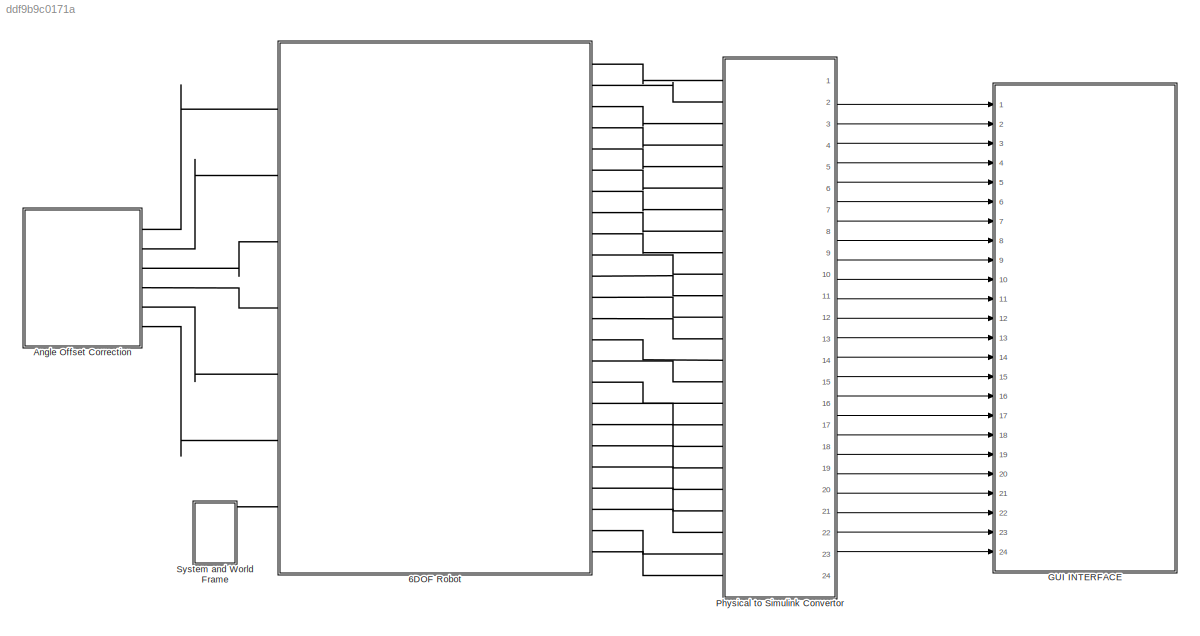
MODEL slx_ddf9b9c0171a
KIND model
CONFIG AbsTol = auto
CONFIG EnableMultiTasking = off
CONFIG FixedStep = auto
CONFIG MaxStep = auto
CONFIG MinStep = auto
CONFIG RelTol = 1e-3
CONFIG SampleTimeConstraint = Unconstrained
CONFIG SolverName = VariableStepAuto
CONFIG StartTime = 0.0
CONFIG StopTime = Inf
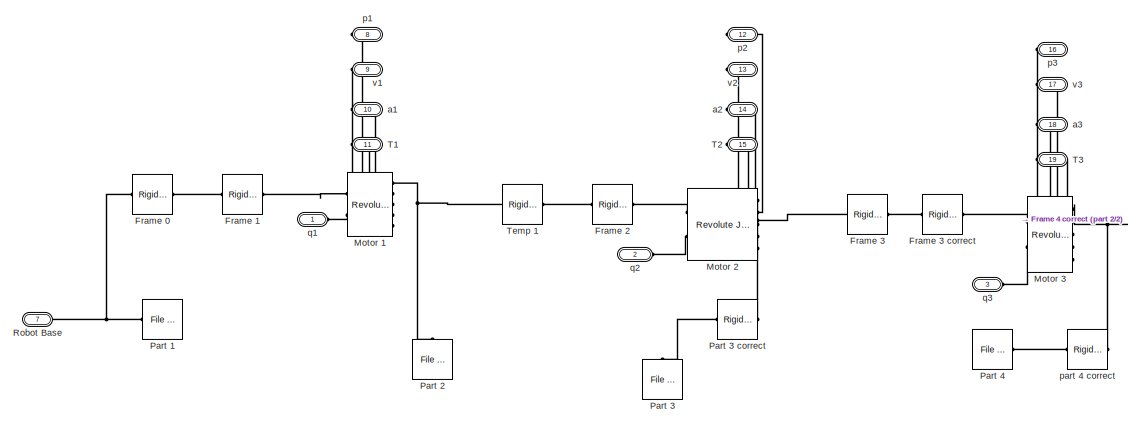
[diagram: 6DOF Robot - part 1/2, left side, full height]
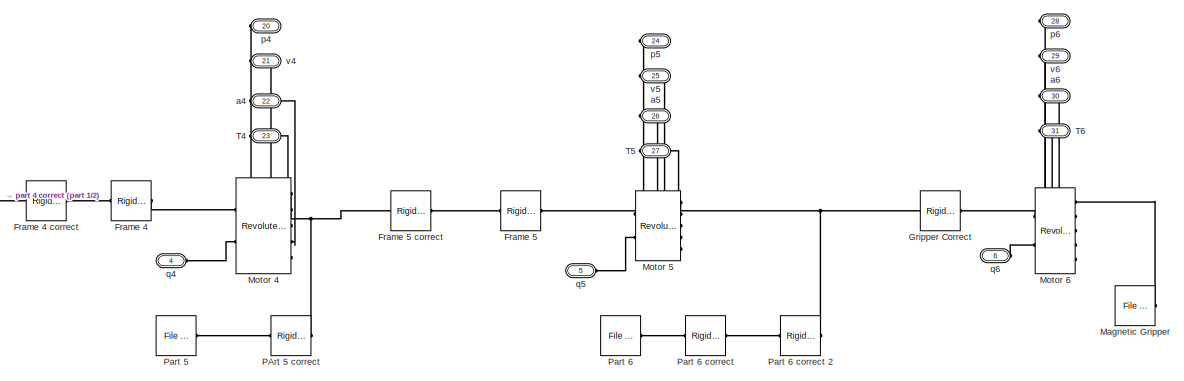
[diagram: 6DOF Robot - part 2/2, right side, full height]
BLOCK [SubSystem] 6DOF Robot
  Ports = [0, 0, 0, 0, 0, 7, 24]
  RequestExecContextInheritance = off
BLOCK [Reference] 6DOF Robot/Frame 0  REF=sm_lib/Frames and
Transforms/Rigid
Transform
  Ports = [0, 0, 0, 0, 0, 1, 1]
  SourceBlock = sm_lib/Frames and\nTransforms/Rigid\nTransform
  SourceProductBaseCode = MS
  SourceType = Rigid\nTransform
BLOCK [Reference] 6DOF Robot/Frame 1  REF=sm_lib/Frames and
Transforms/Rigid
Transform
  Ports = [0, 0, 0, 0, 0, 1, 1]
  SourceBlock = sm_lib/Frames and\nTransforms/Rigid\nTransform
  SourceProductBaseCode = MS
  SourceType = Rigid\nTransform
BLOCK [Reference] 6DOF Robot/Frame 2  REF=sm_lib/Frames and
Transforms/Rigid
Transform
  Ports = [0, 0, 0, 0, 0, 1, 1]
  SourceBlock = sm_lib/Frames and\nTransforms/Rigid\nTransform
  SourceProductBaseCode = MS
  SourceType = Rigid\nTransform
BLOCK [Reference] 6DOF Robot/Frame 3  REF=sm_lib/Frames and
Transforms/Rigid
Transform
  Ports = [0, 0, 0, 0, 0, 1, 1]
  SourceBlock = sm_lib/Frames and\nTransforms/Rigid\nTransform
  SourceProductBaseCode = MS
  SourceType = Rigid\nTransform
BLOCK [Reference] 6DOF Robot/Frame 3 correct  REF=sm_lib/Frames and
Transforms/Rigid
Transform
  Ports = [0, 0, 0, 0, 0, 1, 1]
  SourceBlock = sm_lib/Frames and\nTransforms/Rigid\nTransform
  SourceProductBaseCode = MS
  SourceType = Rigid\nTransform
BLOCK [Reference] 6DOF Robot/Frame 4  REF=sm_lib/Frames and
Transforms/Rigid
Transform
  Ports = [0, 0, 0, 0, 0, 1, 1]
  SourceBlock = sm_lib/Frames and\nTransforms/Rigid\nTransform
  SourceProductBaseCode = MS
  SourceType = Rigid\nTransform
BLOCK [Reference] 6DOF Robot/Frame 4 correct  REF=sm_lib/Frames and
Transforms/Rigid
Transform
  Ports = [0, 0, 0, 0, 0, 1, 1]
  SourceBlock = sm_lib/Frames and\nTransforms/Rigid\nTransform
  SourceProductBaseCode = MS
  SourceType = Rigid\nTransform
BLOCK [Reference] 6DOF Robot/Frame 5   REF=sm_lib/Frames and
Transforms/Rigid
Transform
  Ports = [0, 0, 0, 0, 0, 1, 1]
  SourceBlock = sm_lib/Frames and\nTransforms/Rigid\nTransform
  SourceProductBaseCode = MS
  SourceType = Rigid\nTransform
BLOCK [Reference] 6DOF Robot/Frame 5 correct  REF=sm_lib/Frames and
Transforms/Rigid
Transform
  Ports = [0, 0, 0, 0, 0, 1, 1]
  SourceBlock = sm_lib/Frames and\nTransforms/Rigid\nTransform
  SourceProductBaseCode = MS
  SourceType = Rigid\nTransform
BLOCK [Reference] 6DOF Robot/Gripper Correct  REF=sm_lib/Frames and
Transforms/Rigid
Transform
  Ports = [0, 0, 0, 0, 0, 1, 1]
  SourceBlock = sm_lib/Frames and\nTransforms/Rigid\nTransform
  SourceProductBaseCode = MS
  SourceType = Rigid\nTransform
BLOCK [Reference] 6DOF Robot/Magnetic Gripper  REF=sm_lib/Body Elements/File Solid
  Ports = [0, 0, 0, 0, 0, 0, 1]
  SourceBlock = sm_lib/Body Elements/File Solid
  SourceProductBaseCode = MS
  SourceType = File Solid
BLOCK [Reference] 6DOF Robot/Motor 1  REF=sm_lib/Joints/Revolute Joint
  Ports = [0, 0, 0, 0, 0, 2, 5]
  SourceBlock = sm_lib/Joints/Revolute Joint
  SourceProductBaseCode = MS
  SourceType = Revolute Joint
BLOCK [Reference] 6DOF Robot/Motor 2  REF=sm_lib/Joints/Revolute Joint
  Ports = [0, 0, 0, 0, 0, 2, 5]
  SourceBlock = sm_lib/Joints/Revolute Joint
  SourceProductBaseCode = MS
  SourceType = Revolute Joint
BLOCK [Reference] 6DOF Robot/Motor 3  REF=sm_lib/Joints/Revolute Joint
  Ports = [0, 0, 0, 0, 0, 2, 5]
  SourceBlock = sm_lib/Joints/Revolute Joint
  SourceProductBaseCode = MS
  SourceType = Revolute Joint
BLOCK [Reference] 6DOF Robot/Motor 4  REF=sm_lib/Joints/Revolute Joint
  Ports = [0, 0, 0, 0, 0, 2, 5]
  SourceBlock = sm_lib/Joints/Revolute Joint
  SourceProductBaseCode = MS
  SourceType = Revolute Joint
BLOCK [Reference] 6DOF Robot/Motor 5  REF=sm_lib/Joints/Revolute Joint
  Ports = [0, 0, 0, 0, 0, 2, 5]
  SourceBlock = sm_lib/Joints/Revolute Joint
  SourceProductBaseCode = MS
  SourceType = Revolute Joint
BLOCK [Reference] 6DOF Robot/Motor 6  REF=sm_lib/Joints/Revolute Joint
  Ports = [0, 0, 0, 0, 0, 2, 5]
  SourceBlock = sm_lib/Joints/Revolute Joint
  SourceProductBaseCode = MS
  SourceType = Revolute Joint
BLOCK [Reference] 6DOF Robot/PArt 5 correct  REF=sm_lib/Frames and
Transforms/Rigid
Transform
  Ports = [0, 0, 0, 0, 0, 1, 1]
  SourceBlock = sm_lib/Frames and\nTransforms/Rigid\nTransform
  SourceProductBaseCode = MS
  SourceType = Rigid\nTransform
BLOCK [Reference] 6DOF Robot/Part 1   REF=sm_lib/Body Elements/File Solid
  Ports = [0, 0, 0, 0, 0, 0, 1]
  SourceBlock = sm_lib/Body Elements/File Solid
  SourceProductBaseCode = MS
  SourceType = File Solid
BLOCK [Reference] 6DOF Robot/Part 2  REF=sm_lib/Body Elements/File Solid
  NameLocation = right
  Ports = [0, 0, 0, 0, 0, 0, 1]
  SourceBlock = sm_lib/Body Elements/File Solid
  SourceProductBaseCode = MS
  SourceType = File Solid
BLOCK [Reference] 6DOF Robot/Part 3  REF=sm_lib/Body Elements/File Solid
  NameLocation = right
  Ports = [0, 0, 0, 0, 0, 0, 1]
  SourceBlock = sm_lib/Body Elements/File Solid
  SourceProductBaseCode = MS
  SourceType = File Solid
BLOCK [Reference] 6DOF Robot/Part 3 correct  REF=sm_lib/Frames and
Transforms/Rigid
Transform
  Ports = [0, 0, 0, 0, 0, 1, 1]
  SourceBlock = sm_lib/Frames and\nTransforms/Rigid\nTransform
  SourceProductBaseCode = MS
  SourceType = Rigid\nTransform
BLOCK [Reference] 6DOF Robot/Part 4  REF=sm_lib/Body Elements/File Solid
  Ports = [0, 0, 0, 0, 0, 0, 1]
  SourceBlock = sm_lib/Body Elements/File Solid
  SourceProductBaseCode = MS
  SourceType = File Solid
BLOCK [Reference] 6DOF Robot/Part 5  REF=sm_lib/Body Elements/File Solid
  Ports = [0, 0, 0, 0, 0, 0, 1]
  SourceBlock = sm_lib/Body Elements/File Solid
  SourceProductBaseCode = MS
  SourceType = File Solid
BLOCK [Reference] 6DOF Robot/Part 6  REF=sm_lib/Body Elements/File Solid
  Ports = [0, 0, 0, 0, 0, 0, 1]
  SourceBlock = sm_lib/Body Elements/File Solid
  SourceProductBaseCode = MS
  SourceType = File Solid
BLOCK [Reference] 6DOF Robot/Part 6 correct  REF=sm_lib/Frames and
Transforms/Rigid
Transform
  Ports = [0, 0, 0, 0, 0, 1, 1]
  SourceBlock = sm_lib/Frames and\nTransforms/Rigid\nTransform
  SourceProductBaseCode = MS
  SourceType = Rigid\nTransform
BLOCK [Reference] 6DOF Robot/Part 6 correct 2  REF=sm_lib/Frames and
Transforms/Rigid
Transform
  Ports = [0, 0, 0, 0, 0, 1, 1]
  SourceBlock = sm_lib/Frames and\nTransforms/Rigid\nTransform
  SourceProductBaseCode = MS
  SourceType = Rigid\nTransform
BLOCK [PMIOPort] 6DOF Robot/Robot Base
  Port = 7
  Side = Left
BLOCK [PMIOPort] 6DOF Robot/T1
  Port = 11
  Side = Right
BLOCK [PMIOPort] 6DOF Robot/T2
  Port = 15
  Side = Right
BLOCK [PMIOPort] 6DOF Robot/T3
  Port = 19
  Side = Right
BLOCK [PMIOPort] 6DOF Robot/T4
  Port = 23
  Side = Right
BLOCK [PMIOPort] 6DOF Robot/T5
  Port = 27
  Side = Right
BLOCK [PMIOPort] 6DOF Robot/T6
  Port = 31
  Side = Right
BLOCK [Reference] 6DOF Robot/Temp 1  REF=sm_lib/Frames and
Transforms/Rigid
Transform
  Ports = [0, 0, 0, 0, 0, 1, 1]
  SourceBlock = sm_lib/Frames and\nTransforms/Rigid\nTransform
  SourceProductBaseCode = MS
  SourceType = Rigid\nTransform
BLOCK [PMIOPort] 6DOF Robot/a1
  Port = 10
  Side = Right
BLOCK [PMIOPort] 6DOF Robot/a2
  Port = 14
  Side = Right
BLOCK [PMIOPort] 6DOF Robot/a3
  Port = 18
  Side = Right
BLOCK [PMIOPort] 6DOF Robot/a4
  Port = 22
  Side = Right
BLOCK [PMIOPort] 6DOF Robot/a5
  Port = 26
  Side = Right
BLOCK [PMIOPort] 6DOF Robot/a6
  Port = 30
  Side = Right
BLOCK [PMIOPort] 6DOF Robot/p1
  Port = 8
  Side = Right
BLOCK [PMIOPort] 6DOF Robot/p2
  Port = 12
  Side = Right
BLOCK [PMIOPort] 6DOF Robot/p3
  Port = 16
  Side = Right
BLOCK [PMIOPort] 6DOF Robot/p4
  Port = 20
  Side = Right
BLOCK [PMIOPort] 6DOF Robot/p5
  Port = 24
  Side = Right
BLOCK [PMIOPort] 6DOF Robot/p6
  Port = 28
  Side = Right
BLOCK [Reference] 6DOF Robot/part 4 correct  REF=sm_lib/Frames and
Transforms/Rigid
Transform
  Ports = [0, 0, 0, 0, 0, 1, 1]
  SourceBlock = sm_lib/Frames and\nTransforms/Rigid\nTransform
  SourceProductBaseCode = MS
  SourceType = Rigid\nTransform
BLOCK [PMIOPort] 6DOF Robot/q1
  Side = Left
BLOCK [PMIOPort] 6DOF Robot/q2
  Port = 2
  Side = Left
BLOCK [PMIOPort] 6DOF Robot/q3
  Port = 3
  Side = Left
BLOCK [PMIOPort] 6DOF Robot/q4
  Port = 4
  Side = Left
BLOCK [PMIOPort] 6DOF Robot/q5
  Port = 5
  Side = Left
BLOCK [PMIOPort] 6DOF Robot/q6
  Port = 6
  Side = Left
BLOCK [PMIOPort] 6DOF Robot/v1
  Port = 9
  Side = Right
BLOCK [PMIOPort] 6DOF Robot/v2
  Port = 13
  Side = Right
BLOCK [PMIOPort] 6DOF Robot/v3
  Port = 17
  Side = Right
BLOCK [PMIOPort] 6DOF Robot/v4
  Port = 21
  Side = Right
BLOCK [PMIOPort] 6DOF Robot/v5
  Port = 25
  Side = Right
BLOCK [PMIOPort] 6DOF Robot/v6
  Port = 29
  Side = Right
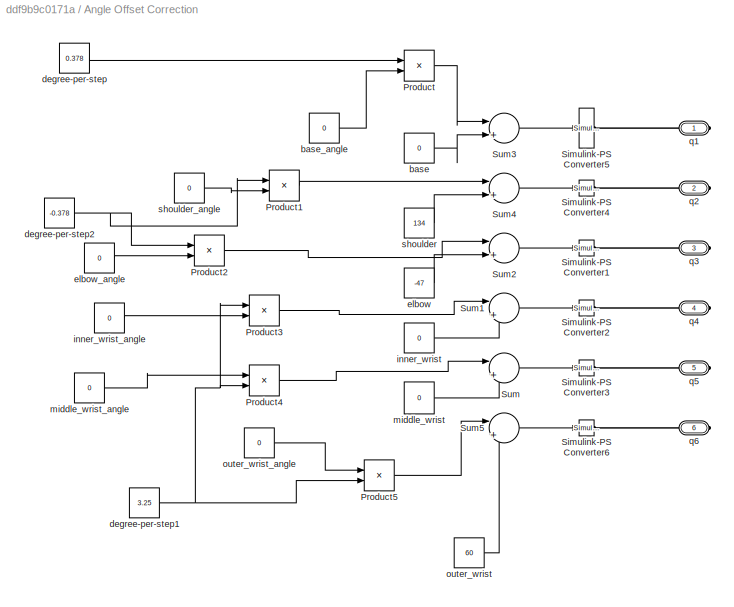
BLOCK [SubSystem] Angle Offset Correction
  Ports = [0, 0, 0, 0, 0, 0, 6]
  RequestExecContextInheritance = off
BLOCK [Product] Angle Offset Correction/Product
  Ports = [2, 1]
BLOCK [Product] Angle Offset Correction/Product1
  Ports = [2, 1]
BLOCK [Product] Angle Offset Correction/Product2
  Ports = [2, 1]
BLOCK [Product] Angle Offset Correction/Product3
  Ports = [2, 1]
BLOCK [Product] Angle Offset Correction/Product4
  Ports = [2, 1]
BLOCK [Product] Angle Offset Correction/Product5
  Ports = [2, 1]
BLOCK [Reference] Angle Offset Correction/Simulink-PS Converter1  REF=nesl_utility/Simulink-PS
Converter
  Ports = [1, 0, 0, 0, 0, 0, 1]
  SourceBlock = nesl_utility/Simulink-PS\nConverter
  SourceProductBaseCode = SS
  SourceType = Simulink-PS\nConverter
BLOCK [Reference] Angle Offset Correction/Simulink-PS Converter2  REF=nesl_utility/Simulink-PS
Converter
  Ports = [1, 0, 0, 0, 0, 0, 1]
  SourceBlock = nesl_utility/Simulink-PS\nConverter
  SourceProductBaseCode = SS
  SourceType = Simulink-PS\nConverter
BLOCK [Reference] Angle Offset Correction/Simulink-PS Converter3  REF=nesl_utility/Simulink-PS
Converter
  Ports = [1, 0, 0, 0, 0, 0, 1]
  SourceBlock = nesl_utility/Simulink-PS\nConverter
  SourceProductBaseCode = SS
  SourceType = Simulink-PS\nConverter
BLOCK [Reference] Angle Offset Correction/Simulink-PS Converter4  REF=nesl_utility/Simulink-PS
Converter
  Ports = [1, 0, 0, 0, 0, 0, 1]
  SourceBlock = nesl_utility/Simulink-PS\nConverter
  SourceProductBaseCode = SS
  SourceType = Simulink-PS\nConverter
BLOCK [Reference] Angle Offset Correction/Simulink-PS Converter5  REF=nesl_utility/Simulink-PS
Converter
  Ports = [1, 0, 0, 0, 0, 0, 1]
  SourceBlock = nesl_utility/Simulink-PS\nConverter
  SourceProductBaseCode = SS
  SourceType = Simulink-PS\nConverter
BLOCK [Reference] Angle Offset Correction/Simulink-PS Converter6  REF=nesl_utility/Simulink-PS
Converter
  Ports = [1, 0, 0, 0, 0, 0, 1]
  SourceBlock = nesl_utility/Simulink-PS\nConverter
  SourceProductBaseCode = SS
  SourceType = Simulink-PS\nConverter
BLOCK [Sum] Angle Offset Correction/Sum
  Inputs = |++
  Ports = [2, 1]
BLOCK [Sum] Angle Offset Correction/Sum1
  Inputs = |++
  Ports = [2, 1]
BLOCK [Sum] Angle Offset Correction/Sum2
  Inputs = |++
  Ports = [2, 1]
BLOCK [Sum] Angle Offset Correction/Sum3
  Inputs = |++
  Ports = [2, 1]
BLOCK [Sum] Angle Offset Correction/Sum4
  Inputs = |++
  Ports = [2, 1]
BLOCK [Sum] Angle Offset Correction/Sum5
  Inputs = |++
  Ports = [2, 1]
BLOCK [Constant] Angle Offset Correction/base
  Value = 0
BLOCK [Constant] Angle Offset Correction/base_angle
  Value = 0
  VectorParams1D = off
BLOCK [Constant] Angle Offset Correction/degree-per-step
  Value = 0.378
  VectorParams1D = off
BLOCK [Constant] Angle Offset Correction/degree-per-step1
  Value = 3.25
  VectorParams1D = off
BLOCK [Constant] Angle Offset Correction/degree-per-step2
  Value = -0.378
  VectorParams1D = off
BLOCK [Constant] Angle Offset Correction/elbow
  Value = -47
BLOCK [Constant] Angle Offset Correction/elbow_angle
  Value = 0
BLOCK [Constant] Angle Offset Correction/inner_wrist
  Value = 0
BLOCK [Constant] Angle Offset Correction/inner_wrist_angle
  Value = 0
BLOCK [Constant] Angle Offset Correction/middle_wrist
  Value = 0
BLOCK [Constant] Angle Offset Correction/middle_wrist_angle
  Value = 0
BLOCK [Constant] Angle Offset Correction/outer_wrist
  Value = 60
BLOCK [Constant] Angle Offset Correction/outer_wrist_angle
  Value = 0
BLOCK [PMIOPort] Angle Offset Correction/q1
  Side = Right
BLOCK [PMIOPort] Angle Offset Correction/q2
  Port = 2
  Side = Right
BLOCK [PMIOPort] Angle Offset Correction/q3
  Port = 3
  Side = Right
BLOCK [PMIOPort] Angle Offset Correction/q4
  Port = 4
  Side = Right
BLOCK [PMIOPort] Angle Offset Correction/q5
  Port = 5
  Side = Right
BLOCK [PMIOPort] Angle Offset Correction/q6
  Port = 6
  Side = Right
BLOCK [Constant] Angle Offset Correction/shoulder
  Value = 134
BLOCK [Constant] Angle Offset Correction/shoulder_angle
  Value = 0
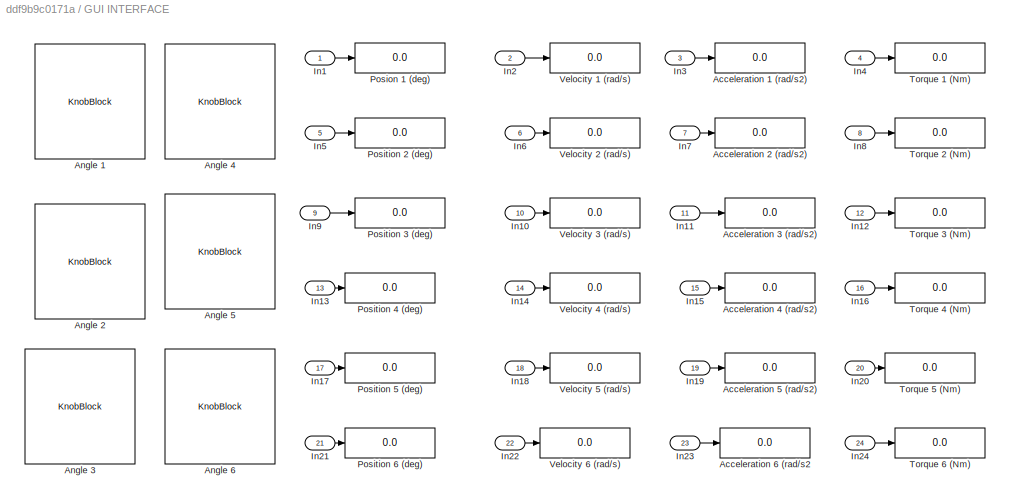
BLOCK [SubSystem] GUI INTERFACE
  Ports = [24]
  RequestExecContextInheritance = off
BLOCK [Display] GUI INTERFACE/Acceleration 1 (rad//s2)
  Decimation = 1
  Ports = [1]
BLOCK [Display] GUI INTERFACE/Acceleration 2 (rad//s2)
  Decimation = 1
  Ports = [1]
BLOCK [Display] GUI INTERFACE/Acceleration 3 (rad//s2)
  Decimation = 1
  Ports = [1]
BLOCK [Display] GUI INTERFACE/Acceleration 4 (rad//s2)
  Decimation = 1
  Ports = [1]
BLOCK [Display] GUI INTERFACE/Acceleration 5 (rad//s2)
  Decimation = 1
  Ports = [1]
BLOCK [Display] GUI INTERFACE/Acceleration 6 (rad//s2
  Decimation = 1
  Ports = [1]
BLOCK [KnobBlock] GUI INTERFACE/Angle 1
  ScaleMax = 180
  ScaleMin = -180
BLOCK [KnobBlock] GUI INTERFACE/Angle 2
  ScaleMax = 180
  ScaleMin = -180
BLOCK [KnobBlock] GUI INTERFACE/Angle 3
  ScaleMax = 180
  ScaleMin = -180
BLOCK [KnobBlock] GUI INTERFACE/Angle 4
  ScaleMax = 180
  ScaleMin = -180
BLOCK [KnobBlock] GUI INTERFACE/Angle 5
  ScaleMax = 180
  ScaleMin = -180
BLOCK [KnobBlock] GUI INTERFACE/Angle 6
  ScaleMax = 180
  ScaleMin = -180
BLOCK [Inport] GUI INTERFACE/In1
BLOCK [Inport] GUI INTERFACE/In10
  Port = 10
BLOCK [Inport] GUI INTERFACE/In11
  Port = 11
BLOCK [Inport] GUI INTERFACE/In12
  Port = 12
BLOCK [Inport] GUI INTERFACE/In13
  Port = 13
BLOCK [Inport] GUI INTERFACE/In14
  Port = 14
BLOCK [Inport] GUI INTERFACE/In15
  Port = 15
BLOCK [Inport] GUI INTERFACE/In16
  Port = 16
BLOCK [Inport] GUI INTERFACE/In17
  Port = 17
BLOCK [Inport] GUI INTERFACE/In18
  Port = 18
BLOCK [Inport] GUI INTERFACE/In19
  Port = 19
BLOCK [Inport] GUI INTERFACE/In2
  Port = 2
BLOCK [Inport] GUI INTERFACE/In20
  Port = 20
BLOCK [Inport] GUI INTERFACE/In21
  Port = 21
BLOCK [Inport] GUI INTERFACE/In22
  Port = 22
BLOCK [Inport] GUI INTERFACE/In23
  Port = 23
BLOCK [Inport] GUI INTERFACE/In24
  Port = 24
BLOCK [Inport] GUI INTERFACE/In3
  Port = 3
BLOCK [Inport] GUI INTERFACE/In4
  Port = 4
BLOCK [Inport] GUI INTERFACE/In5
  Port = 5
BLOCK [Inport] GUI INTERFACE/In6
  Port = 6
BLOCK [Inport] GUI INTERFACE/In7
  Port = 7
BLOCK [Inport] GUI INTERFACE/In8
  Port = 8
BLOCK [Inport] GUI INTERFACE/In9
  Port = 9
BLOCK [Display] GUI INTERFACE/Posion 1 (deg) 
  Decimation = 1
  Ports = [1]
BLOCK [Display] GUI INTERFACE/Position 2 (deg) 
  Decimation = 1
  Ports = [1]
BLOCK [Display] GUI INTERFACE/Position 3 (deg) 
  Decimation = 1
  Ports = [1]
BLOCK [Display] GUI INTERFACE/Position 4 (deg) 
  Decimation = 1
  Ports = [1]
BLOCK [Display] GUI INTERFACE/Position 5 (deg) 
  Decimation = 1
  Ports = [1]
BLOCK [Display] GUI INTERFACE/Position 6 (deg) 
  Decimation = 1
  Ports = [1]
BLOCK [Display] GUI INTERFACE/Torque 1 (Nm)
  Decimation = 1
  Ports = [1]
BLOCK [Display] GUI INTERFACE/Torque 2 (Nm)
  Decimation = 1
  Ports = [1]
BLOCK [Display] GUI INTERFACE/Torque 3 (Nm)
  Decimation = 1
  Ports = [1]
BLOCK [Display] GUI INTERFACE/Torque 4 (Nm)
  Decimation = 1
  Ports = [1]
BLOCK [Display] GUI INTERFACE/Torque 5 (Nm)
  Decimation = 1
  Ports = [1]
BLOCK [Display] GUI INTERFACE/Torque 6 (Nm)
  Decimation = 1
  Ports = [1]
BLOCK [Display] GUI INTERFACE/Velocity 1 (rad//s)
  Decimation = 1
  Ports = [1]
BLOCK [Display] GUI INTERFACE/Velocity 2 (rad//s)
  Decimation = 1
  Ports = [1]
BLOCK [Display] GUI INTERFACE/Velocity 3 (rad//s)
  Decimation = 1
  Ports = [1]
BLOCK [Display] GUI INTERFACE/Velocity 4 (rad//s)
  Decimation = 1
  Ports = [1]
BLOCK [Display] GUI INTERFACE/Velocity 5 (rad//s)
  Decimation = 1
  Ports = [1]
BLOCK [Display] GUI INTERFACE/Velocity 6 (rad//s)
  Decimation = 1
  Ports = [1]
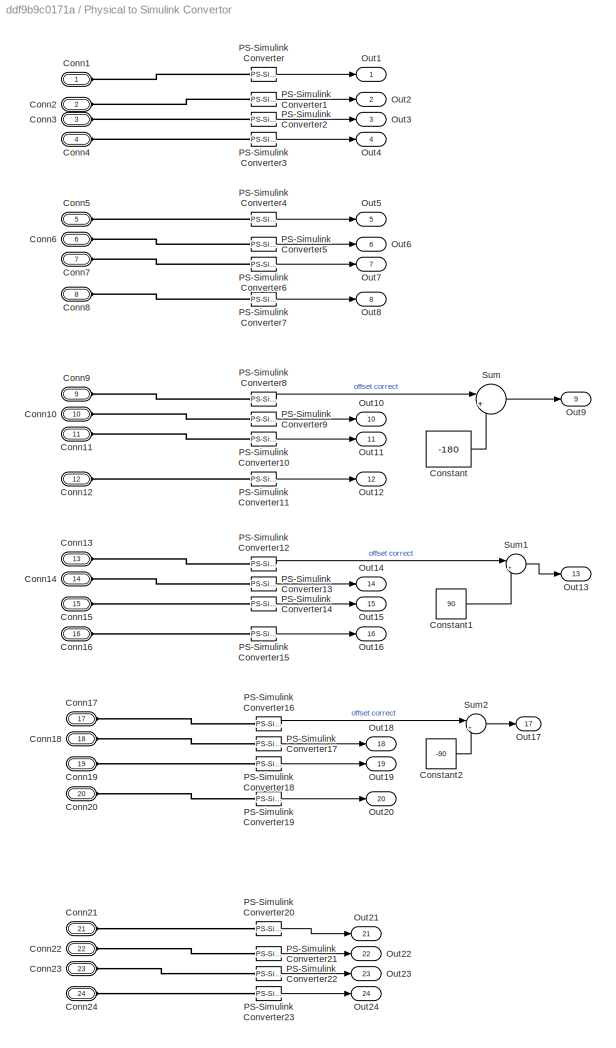
BLOCK [SubSystem] Physical to Simulink Convertor
  Ports = [0, 24, 0, 0, 0, 24]
  RequestExecContextInheritance = off
BLOCK [PMIOPort] Physical to Simulink Convertor/Conn1
  Side = Left
BLOCK [PMIOPort] Physical to Simulink Convertor/Conn10
  Port = 10
  Side = Left
BLOCK [PMIOPort] Physical to Simulink Convertor/Conn11
  Port = 11
  Side = Left
BLOCK [PMIOPort] Physical to Simulink Convertor/Conn12
  Port = 12
  Side = Left
BLOCK [PMIOPort] Physical to Simulink Convertor/Conn13
  Port = 13
  Side = Left
BLOCK [PMIOPort] Physical to Simulink Convertor/Conn14
  Port = 14
  Side = Left
BLOCK [PMIOPort] Physical to Simulink Convertor/Conn15
  Port = 15
  Side = Left
BLOCK [PMIOPort] Physical to Simulink Convertor/Conn16
  Port = 16
  Side = Left
BLOCK [PMIOPort] Physical to Simulink Convertor/Conn17
  Port = 17
  Side = Left
BLOCK [PMIOPort] Physical to Simulink Convertor/Conn18
  Port = 18
  Side = Left
BLOCK [PMIOPort] Physical to Simulink Convertor/Conn19
  Port = 19
  Side = Left
BLOCK [PMIOPort] Physical to Simulink Convertor/Conn2
  Port = 2
  Side = Left
BLOCK [PMIOPort] Physical to Simulink Convertor/Conn20
  Port = 20
  Side = Left
BLOCK [PMIOPort] Physical to Simulink Convertor/Conn21
  Port = 21
  Side = Left
BLOCK [PMIOPort] Physical to Simulink Convertor/Conn22
  Port = 22
  Side = Left
BLOCK [PMIOPort] Physical to Simulink Convertor/Conn23
  Port = 23
  Side = Left
BLOCK [PMIOPort] Physical to Simulink Convertor/Conn24
  Port = 24
  Side = Left
BLOCK [PMIOPort] Physical to Simulink Convertor/Conn3
  Port = 3
  Side = Left
BLOCK [PMIOPort] Physical to Simulink Convertor/Conn4
  Port = 4
  Side = Left
BLOCK [PMIOPort] Physical to Simulink Convertor/Conn5
  Port = 5
  Side = Left
BLOCK [PMIOPort] Physical to Simulink Convertor/Conn6
  Port = 6
  Side = Left
BLOCK [PMIOPort] Physical to Simulink Convertor/Conn7
  Port = 7
  Side = Left
BLOCK [PMIOPort] Physical to Simulink Convertor/Conn8
  Port = 8
  Side = Left
BLOCK [PMIOPort] Physical to Simulink Convertor/Conn9
  Port = 9
  Side = Left
BLOCK [Constant] Physical to Simulink Convertor/Constant
  Value = -180
BLOCK [Constant] Physical to Simulink Convertor/Constant1
  Value = 90
BLOCK [Constant] Physical to Simulink Convertor/Constant2
  Value = -90
BLOCK [Outport] Physical to Simulink Convertor/Out1
  VectorParamsAs1DForOutWhenUnconnected = off
BLOCK [Outport] Physical to Simulink Convertor/Out10
  Port = 10
  VectorParamsAs1DForOutWhenUnconnected = off
BLOCK [Outport] Physical to Simulink Convertor/Out11
  Port = 11
  VectorParamsAs1DForOutWhenUnconnected = off
BLOCK [Outport] Physical to Simulink Convertor/Out12
  Port = 12
  VectorParamsAs1DForOutWhenUnconnected = off
BLOCK [Outport] Physical to Simulink Convertor/Out13
  Port = 13
  VectorParamsAs1DForOutWhenUnconnected = off
BLOCK [Outport] Physical to Simulink Convertor/Out14
  Port = 14
  VectorParamsAs1DForOutWhenUnconnected = off
BLOCK [Outport] Physical to Simulink Convertor/Out15
  Port = 15
  VectorParamsAs1DForOutWhenUnconnected = off
BLOCK [Outport] Physical to Simulink Convertor/Out16
  Port = 16
  VectorParamsAs1DForOutWhenUnconnected = off
BLOCK [Outport] Physical to Simulink Convertor/Out17
  Port = 17
  VectorParamsAs1DForOutWhenUnconnected = off
BLOCK [Outport] Physical to Simulink Convertor/Out18
  Port = 18
  VectorParamsAs1DForOutWhenUnconnected = off
BLOCK [Outport] Physical to Simulink Convertor/Out19
  Port = 19
  VectorParamsAs1DForOutWhenUnconnected = off
BLOCK [Outport] Physical to Simulink Convertor/Out2
  Port = 2
  VectorParamsAs1DForOutWhenUnconnected = off
BLOCK [Outport] Physical to Simulink Convertor/Out20
  Port = 20
  VectorParamsAs1DForOutWhenUnconnected = off
BLOCK [Outport] Physical to Simulink Convertor/Out21
  Port = 21
  VectorParamsAs1DForOutWhenUnconnected = off
BLOCK [Outport] Physical to Simulink Convertor/Out22
  Port = 22
  VectorParamsAs1DForOutWhenUnconnected = off
BLOCK [Outport] Physical to Simulink Convertor/Out23
  Port = 23
  VectorParamsAs1DForOutWhenUnconnected = off
BLOCK [Outport] Physical to Simulink Convertor/Out24
  Port = 24
  VectorParamsAs1DForOutWhenUnconnected = off
BLOCK [Outport] Physical to Simulink Convertor/Out3
  Port = 3
  VectorParamsAs1DForOutWhenUnconnected = off
BLOCK [Outport] Physical to Simulink Convertor/Out4
  Port = 4
  VectorParamsAs1DForOutWhenUnconnected = off
BLOCK [Outport] Physical to Simulink Convertor/Out5
  Port = 5
  VectorParamsAs1DForOutWhenUnconnected = off
BLOCK [Outport] Physical to Simulink Convertor/Out6
  Port = 6
  VectorParamsAs1DForOutWhenUnconnected = off
BLOCK [Outport] Physical to Simulink Convertor/Out7
  Port = 7
  VectorParamsAs1DForOutWhenUnconnected = off
BLOCK [Outport] Physical to Simulink Convertor/Out8
  Port = 8
  VectorParamsAs1DForOutWhenUnconnected = off
BLOCK [Outport] Physical to Simulink Convertor/Out9
  Port = 9
  VectorParamsAs1DForOutWhenUnconnected = off
BLOCK [Reference] Physical to Simulink Convertor/PS-Simulink Converter  REF=nesl_utility/PS-Simulink
Converter
  Ports = [0, 1, 0, 0, 0, 1]
  SourceBlock = nesl_utility/PS-Simulink\nConverter
  SourceProductBaseCode = SS
  SourceType = PS-Simulink\nConverter
BLOCK [Reference] Physical to Simulink Convertor/PS-Simulink Converter1  REF=nesl_utility/PS-Simulink
Converter
  Ports = [0, 1, 0, 0, 0, 1]
  SourceBlock = nesl_utility/PS-Simulink\nConverter
  SourceProductBaseCode = SS
  SourceType = PS-Simulink\nConverter
BLOCK [Reference] Physical to Simulink Convertor/PS-Simulink Converter10  REF=nesl_utility/PS-Simulink
Converter
  Ports = [0, 1, 0, 0, 0, 1]
  SourceBlock = nesl_utility/PS-Simulink\nConverter
  SourceProductBaseCode = SS
  SourceType = PS-Simulink\nConverter
BLOCK [Reference] Physical to Simulink Convertor/PS-Simulink Converter11  REF=nesl_utility/PS-Simulink
Converter
  Ports = [0, 1, 0, 0, 0, 1]
  SourceBlock = nesl_utility/PS-Simulink\nConverter
  SourceProductBaseCode = SS
  SourceType = PS-Simulink\nConverter
BLOCK [Reference] Physical to Simulink Convertor/PS-Simulink Converter12  REF=nesl_utility/PS-Simulink
Converter
  Ports = [0, 1, 0, 0, 0, 1]
  SourceBlock = nesl_utility/PS-Simulink\nConverter
  SourceProductBaseCode = SS
  SourceType = PS-Simulink\nConverter
BLOCK [Reference] Physical to Simulink Convertor/PS-Simulink Converter13  REF=nesl_utility/PS-Simulink
Converter
  Ports = [0, 1, 0, 0, 0, 1]
  SourceBlock = nesl_utility/PS-Simulink\nConverter
  SourceProductBaseCode = SS
  SourceType = PS-Simulink\nConverter
BLOCK [Reference] Physical to Simulink Convertor/PS-Simulink Converter14  REF=nesl_utility/PS-Simulink
Converter
  Ports = [0, 1, 0, 0, 0, 1]
  SourceBlock = nesl_utility/PS-Simulink\nConverter
  SourceProductBaseCode = SS
  SourceType = PS-Simulink\nConverter
BLOCK [Reference] Physical to Simulink Convertor/PS-Simulink Converter15  REF=nesl_utility/PS-Simulink
Converter
  Ports = [0, 1, 0, 0, 0, 1]
  SourceBlock = nesl_utility/PS-Simulink\nConverter
  SourceProductBaseCode = SS
  SourceType = PS-Simulink\nConverter
BLOCK [Reference] Physical to Simulink Convertor/PS-Simulink Converter16  REF=nesl_utility/PS-Simulink
Converter
  Ports = [0, 1, 0, 0, 0, 1]
  SourceBlock = nesl_utility/PS-Simulink\nConverter
  SourceProductBaseCode = SS
  SourceType = PS-Simulink\nConverter
BLOCK [Reference] Physical to Simulink Convertor/PS-Simulink Converter17  REF=nesl_utility/PS-Simulink
Converter
  Ports = [0, 1, 0, 0, 0, 1]
  SourceBlock = nesl_utility/PS-Simulink\nConverter
  SourceProductBaseCode = SS
  SourceType = PS-Simulink\nConverter
BLOCK [Reference] Physical to Simulink Convertor/PS-Simulink Converter18  REF=nesl_utility/PS-Simulink
Converter
  Ports = [0, 1, 0, 0, 0, 1]
  SourceBlock = nesl_utility/PS-Simulink\nConverter
  SourceProductBaseCode = SS
  SourceType = PS-Simulink\nConverter
BLOCK [Reference] Physical to Simulink Convertor/PS-Simulink Converter19  REF=nesl_utility/PS-Simulink
Converter
  Ports = [0, 1, 0, 0, 0, 1]
  SourceBlock = nesl_utility/PS-Simulink\nConverter
  SourceProductBaseCode = SS
  SourceType = PS-Simulink\nConverter
BLOCK [Reference] Physical to Simulink Convertor/PS-Simulink Converter2  REF=nesl_utility/PS-Simulink
Converter
  Ports = [0, 1, 0, 0, 0, 1]
  SourceBlock = nesl_utility/PS-Simulink\nConverter
  SourceProductBaseCode = SS
  SourceType = PS-Simulink\nConverter
BLOCK [Reference] Physical to Simulink Convertor/PS-Simulink Converter20  REF=nesl_utility/PS-Simulink
Converter
  Ports = [0, 1, 0, 0, 0, 1]
  SourceBlock = nesl_utility/PS-Simulink\nConverter
  SourceProductBaseCode = SS
  SourceType = PS-Simulink\nConverter
BLOCK [Reference] Physical to Simulink Convertor/PS-Simulink Converter21  REF=nesl_utility/PS-Simulink
Converter
  Ports = [0, 1, 0, 0, 0, 1]
  SourceBlock = nesl_utility/PS-Simulink\nConverter
  SourceProductBaseCode = SS
  SourceType = PS-Simulink\nConverter
BLOCK [Reference] Physical to Simulink Convertor/PS-Simulink Converter22  REF=nesl_utility/PS-Simulink
Converter
  Ports = [0, 1, 0, 0, 0, 1]
  SourceBlock = nesl_utility/PS-Simulink\nConverter
  SourceProductBaseCode = SS
  SourceType = PS-Simulink\nConverter
BLOCK [Reference] Physical to Simulink Convertor/PS-Simulink Converter23  REF=nesl_utility/PS-Simulink
Converter
  Ports = [0, 1, 0, 0, 0, 1]
  SourceBlock = nesl_utility/PS-Simulink\nConverter
  SourceProductBaseCode = SS
  SourceType = PS-Simulink\nConverter
BLOCK [Reference] Physical to Simulink Convertor/PS-Simulink Converter3  REF=nesl_utility/PS-Simulink
Converter
  Ports = [0, 1, 0, 0, 0, 1]
  SourceBlock = nesl_utility/PS-Simulink\nConverter
  SourceProductBaseCode = SS
  SourceType = PS-Simulink\nConverter
BLOCK [Reference] Physical to Simulink Convertor/PS-Simulink Converter4  REF=nesl_utility/PS-Simulink
Converter
  Ports = [0, 1, 0, 0, 0, 1]
  SourceBlock = nesl_utility/PS-Simulink\nConverter
  SourceProductBaseCode = SS
  SourceType = PS-Simulink\nConverter
BLOCK [Reference] Physical to Simulink Convertor/PS-Simulink Converter5  REF=nesl_utility/PS-Simulink
Converter
  Ports = [0, 1, 0, 0, 0, 1]
  SourceBlock = nesl_utility/PS-Simulink\nConverter
  SourceProductBaseCode = SS
  SourceType = PS-Simulink\nConverter
BLOCK [Reference] Physical to Simulink Convertor/PS-Simulink Converter6  REF=nesl_utility/PS-Simulink
Converter
  Ports = [0, 1, 0, 0, 0, 1]
  SourceBlock = nesl_utility/PS-Simulink\nConverter
  SourceProductBaseCode = SS
  SourceType = PS-Simulink\nConverter
BLOCK [Reference] Physical to Simulink Convertor/PS-Simulink Converter7  REF=nesl_utility/PS-Simulink
Converter
  Ports = [0, 1, 0, 0, 0, 1]
  SourceBlock = nesl_utility/PS-Simulink\nConverter
  SourceProductBaseCode = SS
  SourceType = PS-Simulink\nConverter
BLOCK [Reference] Physical to Simulink Convertor/PS-Simulink Converter8  REF=nesl_utility/PS-Simulink
Converter
  Ports = [0, 1, 0, 0, 0, 1]
  SourceBlock = nesl_utility/PS-Simulink\nConverter
  SourceProductBaseCode = SS
  SourceType = PS-Simulink\nConverter
BLOCK [Reference] Physical to Simulink Convertor/PS-Simulink Converter9  REF=nesl_utility/PS-Simulink
Converter
  Ports = [0, 1, 0, 0, 0, 1]
  SourceBlock = nesl_utility/PS-Simulink\nConverter
  SourceProductBaseCode = SS
  SourceType = PS-Simulink\nConverter
BLOCK [Sum] Physical to Simulink Convertor/Sum
  Inputs = |++
  Ports = [2, 1]
BLOCK [Sum] Physical to Simulink Convertor/Sum1
  Inputs = |++
  Ports = [2, 1]
BLOCK [Sum] Physical to Simulink Convertor/Sum2
  Inputs = |++
  Ports = [2, 1]
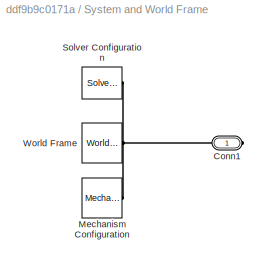
BLOCK [SubSystem] System and World Frame
  Ports = [0, 0, 0, 0, 0, 0, 1]
  RequestExecContextInheritance = off
BLOCK [PMIOPort] System and World Frame/Conn1
  Side = Right
BLOCK [Reference] System and World Frame/Mechanism Configuration  REF=sm_lib/Utilities/Mechanism
Configuration
  Ports = [0, 0, 0, 0, 0, 0, 1]
  SourceBlock = sm_lib/Utilities/Mechanism\nConfiguration
  SourceProductBaseCode = MS
  SourceType = Mechanism\nConfiguration
BLOCK [Reference] System and World Frame/Solver Configuration  REF=nesl_utility/Solver
Configuration
  Ports = [0, 0, 0, 0, 0, 0, 1]
  SourceBlock = nesl_utility/Solver\nConfiguration
  SourceProductBaseCode = SS
  SourceType = Solver\nConfiguration
BLOCK [Reference] System and World Frame/World Frame  REF=sm_lib/Frames and
Transforms/World Frame
  Ports = [0, 0, 0, 0, 0, 0, 1]
  SourceBlock = sm_lib/Frames and\nTransforms/World Frame
  SourceProductBaseCode = MS
  SourceType = World Frame
LINE Angle Offset Correction/Product1:1 -> Angle Offset Correction/Sum4:1
LINE Angle Offset Correction/Product2:1 -> Angle Offset Correction/Sum2:1
LINE Angle Offset Correction/Product3:1 -> Angle Offset Correction/Sum1:1
LINE Angle Offset Correction/Product4:1 -> Angle Offset Correction/Sum:1
LINE Angle Offset Correction/Product5:1 -> Angle Offset Correction/Sum5:1
LINE Angle Offset Correction/Product:1 -> Angle Offset Correction/Sum3:1
LINE Angle Offset Correction/Sum1:1 -> Angle Offset Correction/Simulink-PS Converter2:1
LINE Angle Offset Correction/Sum2:1 -> Angle Offset Correction/Simulink-PS Converter1:1
LINE Angle Offset Correction/Sum3:1 -> Angle Offset Correction/Simulink-PS Converter5:1
LINE Angle Offset Correction/Sum4:1 -> Angle Offset Correction/Simulink-PS Converter4:1
LINE Angle Offset Correction/Sum5:1 -> Angle Offset Correction/Simulink-PS Converter6:1
LINE Angle Offset Correction/Sum:1 -> Angle Offset Correction/Simulink-PS Converter3:1
LINE Angle Offset Correction/base:1 -> Angle Offset Correction/Sum3:2
LINE Angle Offset Correction/base_angle:1 -> Angle Offset Correction/Product:2
NET Angle Offset Correction/degree-per-step1:1 -> Angle Offset Correction/Product3:1, Angle Offset Correction/Product4:2, Angle Offset Correction/Product5:2
NET Angle Offset Correction/degree-per-step2:1 -> Angle Offset Correction/Product1:1, Angle Offset Correction/Product2:1
LINE Angle Offset Correction/degree-per-step:1 -> Angle Offset Correction/Product:1
LINE Angle Offset Correction/elbow:1 -> Angle Offset Correction/Sum2:2
LINE Angle Offset Correction/elbow_angle:1 -> Angle Offset Correction/Product2:2
LINE Angle Offset Correction/inner_wrist:1 -> Angle Offset Correction/Sum1:2
LINE Angle Offset Correction/inner_wrist_angle:1 -> Angle Offset Correction/Product3:2
LINE Angle Offset Correction/middle_wrist:1 -> Angle Offset Correction/Sum:2
LINE Angle Offset Correction/middle_wrist_angle:1 -> Angle Offset Correction/Product4:1
LINE Angle Offset Correction/outer_wrist:1 -> Angle Offset Correction/Sum5:2
LINE Angle Offset Correction/outer_wrist_angle:1 -> Angle Offset Correction/Product5:1
LINE Angle Offset Correction/shoulder:1 -> Angle Offset Correction/Sum4:2
LINE Angle Offset Correction/shoulder_angle:1 -> Angle Offset Correction/Product1:2
LINE GUI INTERFACE/In10:1 -> GUI INTERFACE/Velocity 3 (rad//s):1
LINE GUI INTERFACE/In11:1 -> GUI INTERFACE/Acceleration 3 (rad//s2):1
LINE GUI INTERFACE/In12:1 -> GUI INTERFACE/Torque 3 (Nm):1
LINE GUI INTERFACE/In13:1 -> GUI INTERFACE/Position 4 (deg) :1
LINE GUI INTERFACE/In14:1 -> GUI INTERFACE/Velocity 4 (rad//s):1
LINE GUI INTERFACE/In15:1 -> GUI INTERFACE/Acceleration 4 (rad//s2):1
LINE GUI INTERFACE/In16:1 -> GUI INTERFACE/Torque 4 (Nm):1
LINE GUI INTERFACE/In17:1 -> GUI INTERFACE/Position 5 (deg) :1
LINE GUI INTERFACE/In18:1 -> GUI INTERFACE/Velocity 5 (rad//s):1
LINE GUI INTERFACE/In19:1 -> GUI INTERFACE/Acceleration 5 (rad//s2):1
LINE GUI INTERFACE/In1:1 -> GUI INTERFACE/Posion 1 (deg) :1
LINE GUI INTERFACE/In20:1 -> GUI INTERFACE/Torque 5 (Nm):1
LINE GUI INTERFACE/In21:1 -> GUI INTERFACE/Position 6 (deg) :1
LINE GUI INTERFACE/In22:1 -> GUI INTERFACE/Velocity 6 (rad//s):1
LINE GUI INTERFACE/In23:1 -> GUI INTERFACE/Acceleration 6 (rad//s2:1
LINE GUI INTERFACE/In24:1 -> GUI INTERFACE/Torque 6 (Nm):1
LINE GUI INTERFACE/In2:1 -> GUI INTERFACE/Velocity 1 (rad//s):1
LINE GUI INTERFACE/In3:1 -> GUI INTERFACE/Acceleration 1 (rad//s2):1
LINE GUI INTERFACE/In4:1 -> GUI INTERFACE/Torque 1 (Nm):1
LINE GUI INTERFACE/In5:1 -> GUI INTERFACE/Position 2 (deg) :1
LINE GUI INTERFACE/In6:1 -> GUI INTERFACE/Velocity 2 (rad//s):1
LINE GUI INTERFACE/In7:1 -> GUI INTERFACE/Acceleration 2 (rad//s2):1
LINE GUI INTERFACE/In8:1 -> GUI INTERFACE/Torque 2 (Nm):1
LINE GUI INTERFACE/In9:1 -> GUI INTERFACE/Position 3 (deg) :1
LINE Physical to Simulink Convertor/Constant1:1 -> Physical to Simulink Convertor/Sum1:2
LINE Physical to Simulink Convertor/Constant2:1 -> Physical to Simulink Convertor/Sum2:2
LINE Physical to Simulink Convertor/Constant:1 -> Physical to Simulink Convertor/Sum:2
LINE Physical to Simulink Convertor/PS-Simulink Converter10:1 -> Physical to Simulink Convertor/Out11:1
LINE Physical to Simulink Convertor/PS-Simulink Converter11:1 -> Physical to Simulink Convertor/Out12:1
LINE Physical to Simulink Convertor/PS-Simulink Converter12:1 -> Physical to Simulink Convertor/Sum1:1
LINE Physical to Simulink Convertor/PS-Simulink Converter13:1 -> Physical to Simulink Convertor/Out14:1
LINE Physical to Simulink Convertor/PS-Simulink Converter14:1 -> Physical to Simulink Convertor/Out15:1
LINE Physical to Simulink Convertor/PS-Simulink Converter15:1 -> Physical to Simulink Convertor/Out16:1
LINE Physical to Simulink Convertor/PS-Simulink Converter16:1 -> Physical to Simulink Convertor/Sum2:1
LINE Physical to Simulink Convertor/PS-Simulink Converter17:1 -> Physical to Simulink Convertor/Out18:1
LINE Physical to Simulink Convertor/PS-Simulink Converter18:1 -> Physical to Simulink Convertor/Out19:1
LINE Physical to Simulink Convertor/PS-Simulink Converter19:1 -> Physical to Simulink Convertor/Out20:1
LINE Physical to Simulink Convertor/PS-Simulink Converter1:1 -> Physical to Simulink Convertor/Out2:1
LINE Physical to Simulink Convertor/PS-Simulink Converter20:1 -> Physical to Simulink Convertor/Out21:1
LINE Physical to Simulink Convertor/PS-Simulink Converter21:1 -> Physical to Simulink Convertor/Out22:1
LINE Physical to Simulink Convertor/PS-Simulink Converter22:1 -> Physical to Simulink Convertor/Out23:1
LINE Physical to Simulink Convertor/PS-Simulink Converter23:1 -> Physical to Simulink Convertor/Out24:1
LINE Physical to Simulink Convertor/PS-Simulink Converter2:1 -> Physical to Simulink Convertor/Out3:1
LINE Physical to Simulink Convertor/PS-Simulink Converter3:1 -> Physical to Simulink Convertor/Out4:1
LINE Physical to Simulink Convertor/PS-Simulink Converter4:1 -> Physical to Simulink Convertor/Out5:1
LINE Physical to Simulink Convertor/PS-Simulink Converter5:1 -> Physical to Simulink Convertor/Out6:1
LINE Physical to Simulink Convertor/PS-Simulink Converter6:1 -> Physical to Simulink Convertor/Out7:1
LINE Physical to Simulink Convertor/PS-Simulink Converter7:1 -> Physical to Simulink Convertor/Out8:1
LINE Physical to Simulink Convertor/PS-Simulink Converter8:1 -> Physical to Simulink Convertor/Sum:1
LINE Physical to Simulink Convertor/PS-Simulink Converter9:1 -> Physical to Simulink Convertor/Out10:1
LINE Physical to Simulink Convertor/PS-Simulink Converter:1 -> Physical to Simulink Convertor/Out1:1
LINE Physical to Simulink Convertor/Sum1:1 -> Physical to Simulink Convertor/Out13:1
LINE Physical to Simulink Convertor/Sum2:1 -> Physical to Simulink Convertor/Out17:1
LINE Physical to Simulink Convertor/Sum:1 -> Physical to Simulink Convertor/Out9:1
LINE Physical to Simulink Convertor:1 -> GUI INTERFACE:1
LINE Physical to Simulink Convertor:10 -> GUI INTERFACE:10
LINE Physical to Simulink Convertor:11 -> GUI INTERFACE:11
LINE Physical to Simulink Convertor:12 -> GUI INTERFACE:12
LINE Physical to Simulink Convertor:13 -> GUI INTERFACE:13
LINE Physical to Simulink Convertor:14 -> GUI INTERFACE:14
LINE Physical to Simulink Convertor:15 -> GUI INTERFACE:15
LINE Physical to Simulink Convertor:16 -> GUI INTERFACE:16
LINE Physical to Simulink Convertor:17 -> GUI INTERFACE:17
LINE Physical to Simulink Convertor:18 -> GUI INTERFACE:18
LINE Physical to Simulink Convertor:19 -> GUI INTERFACE:19
LINE Physical to Simulink Convertor:2 -> GUI INTERFACE:2
LINE Physical to Simulink Convertor:20 -> GUI INTERFACE:20
LINE Physical to Simulink Convertor:21 -> GUI INTERFACE:21
LINE Physical to Simulink Convertor:22 -> GUI INTERFACE:22
LINE Physical to Simulink Convertor:23 -> GUI INTERFACE:23
LINE Physical to Simulink Convertor:24 -> GUI INTERFACE:24
LINE Physical to Simulink Convertor:3 -> GUI INTERFACE:3
LINE Physical to Simulink Convertor:4 -> GUI INTERFACE:4
LINE Physical to Simulink Convertor:5 -> GUI INTERFACE:5
LINE Physical to Simulink Convertor:6 -> GUI INTERFACE:6
LINE Physical to Simulink Convertor:7 -> GUI INTERFACE:7
LINE Physical to Simulink Convertor:8 -> GUI INTERFACE:8
LINE Physical to Simulink Convertor:9 -> GUI INTERFACE:9
PNET net1: 6DOF Robot/Frame 0:LConn1 -- 6DOF Robot/Part 1 :RConn1 -- 6DOF Robot/Robot Base:RConn1
PLINE 6DOF Robot/Frame 0:RConn1 -- 6DOF Robot/Frame 1:LConn1
PLINE 6DOF Robot/Frame 1:RConn1 -- 6DOF Robot/Motor 1:LConn1
PLINE 6DOF Robot/Frame 2:LConn1 -- 6DOF Robot/Temp 1:RConn1
PLINE 6DOF Robot/Frame 2:RConn1 -- 6DOF Robot/Motor 2:LConn1
PLINE 6DOF Robot/Frame 3 correct:LConn1 -- 6DOF Robot/Frame 3:RConn1
PLINE 6DOF Robot/Frame 3 correct:RConn1 -- 6DOF Robot/Motor 3:LConn1
PNET net2: 6DOF Robot/Frame 3:LConn1 -- 6DOF Robot/Motor 2:RConn1 -- 6DOF Robot/Part 3 correct:RConn1
PNET net3: 6DOF Robot/Frame 4 correct:LConn1 -- 6DOF Robot/Motor 3:RConn1 -- 6DOF Robot/part 4 correct:RConn1
PLINE 6DOF Robot/Frame 4 correct:RConn1 -- 6DOF Robot/Frame 4:LConn1
PLINE 6DOF Robot/Frame 4:RConn1 -- 6DOF Robot/Motor 4:LConn1
PLINE 6DOF Robot/Frame 5 :LConn1 -- 6DOF Robot/Frame 5 correct:RConn1
PLINE 6DOF Robot/Frame 5 :RConn1 -- 6DOF Robot/Motor 5:LConn1
PNET net4: 6DOF Robot/Frame 5 correct:LConn1 -- 6DOF Robot/Motor 4:RConn1 -- 6DOF Robot/PArt 5 correct:RConn1
PNET net5: 6DOF Robot/Gripper Correct:LConn1 -- 6DOF Robot/Motor 5:RConn1 -- 6DOF Robot/Part 6 correct 2:RConn1
PLINE 6DOF Robot/Gripper Correct:RConn1 -- 6DOF Robot/Motor 6:LConn1
PLINE 6DOF Robot/Magnetic Gripper:RConn1 -- 6DOF Robot/Motor 6:RConn1
PLINE 6DOF Robot/Motor 1:LConn2 -- 6DOF Robot/q1:RConn1
PNET net6: 6DOF Robot/Motor 1:RConn1 -- 6DOF Robot/Part 2:RConn1 -- 6DOF Robot/Temp 1:LConn1
PLINE 6DOF Robot/Motor 1:RConn2 -- 6DOF Robot/p1:RConn1
PLINE 6DOF Robot/Motor 1:RConn3 -- 6DOF Robot/v1:RConn1
PLINE 6DOF Robot/Motor 1:RConn4 -- 6DOF Robot/a1:RConn1
PLINE 6DOF Robot/Motor 1:RConn5 -- 6DOF Robot/T1:RConn1
PLINE 6DOF Robot/Motor 2:LConn2 -- 6DOF Robot/q2:RConn1
PLINE 6DOF Robot/Motor 2:RConn2 -- 6DOF Robot/p2:RConn1
PLINE 6DOF Robot/Motor 2:RConn3 -- 6DOF Robot/v2:RConn1
PLINE 6DOF Robot/Motor 2:RConn4 -- 6DOF Robot/a2:RConn1
PLINE 6DOF Robot/Motor 2:RConn5 -- 6DOF Robot/T2:RConn1
PLINE 6DOF Robot/Motor 3:LConn2 -- 6DOF Robot/q3:RConn1
PLINE 6DOF Robot/Motor 3:RConn2 -- 6DOF Robot/p3:RConn1
PLINE 6DOF Robot/Motor 3:RConn3 -- 6DOF Robot/v3:RConn1
PLINE 6DOF Robot/Motor 3:RConn4 -- 6DOF Robot/a3:RConn1
PLINE 6DOF Robot/Motor 3:RConn5 -- 6DOF Robot/T3:RConn1
PLINE 6DOF Robot/Motor 4:LConn2 -- 6DOF Robot/q4:RConn1
PLINE 6DOF Robot/Motor 4:RConn2 -- 6DOF Robot/p4:RConn1
PLINE 6DOF Robot/Motor 4:RConn3 -- 6DOF Robot/v4:RConn1
PLINE 6DOF Robot/Motor 4:RConn4 -- 6DOF Robot/a4:RConn1
PLINE 6DOF Robot/Motor 4:RConn5 -- 6DOF Robot/T4:RConn1
PLINE 6DOF Robot/Motor 5:LConn2 -- 6DOF Robot/q5:RConn1
PLINE 6DOF Robot/Motor 5:RConn2 -- 6DOF Robot/p5:RConn1
PLINE 6DOF Robot/Motor 5:RConn3 -- 6DOF Robot/v5:RConn1
PLINE 6DOF Robot/Motor 5:RConn4 -- 6DOF Robot/a5:RConn1
PLINE 6DOF Robot/Motor 5:RConn5 -- 6DOF Robot/T5:RConn1
PLINE 6DOF Robot/Motor 6:LConn2 -- 6DOF Robot/q6:RConn1
PLINE 6DOF Robot/Motor 6:RConn2 -- 6DOF Robot/p6:RConn1
PLINE 6DOF Robot/Motor 6:RConn3 -- 6DOF Robot/v6:RConn1
PLINE 6DOF Robot/Motor 6:RConn4 -- 6DOF Robot/a6:RConn1
PLINE 6DOF Robot/Motor 6:RConn5 -- 6DOF Robot/T6:RConn1
PLINE 6DOF Robot/PArt 5 correct:LConn1 -- 6DOF Robot/Part 5:RConn1
PLINE 6DOF Robot/Part 3 correct:LConn1 -- 6DOF Robot/Part 3:RConn1
PLINE 6DOF Robot/Part 4:RConn1 -- 6DOF Robot/part 4 correct:LConn1
PLINE 6DOF Robot/Part 6 correct 2:LConn1 -- 6DOF Robot/Part 6 correct:RConn1
PLINE 6DOF Robot/Part 6 correct:LConn1 -- 6DOF Robot/Part 6:RConn1
PLINE 6DOF Robot:LConn1 -- Angle Offset Correction:RConn1
PLINE 6DOF Robot:LConn2 -- Angle Offset Correction:RConn2
PLINE 6DOF Robot:LConn3 -- Angle Offset Correction:RConn3
PLINE 6DOF Robot:LConn4 -- Angle Offset Correction:RConn4
PLINE 6DOF Robot:LConn5 -- Angle Offset Correction:RConn5
PLINE 6DOF Robot:LConn6 -- Angle Offset Correction:RConn6
PLINE 6DOF Robot:LConn7 -- System and World Frame:RConn1
PLINE 6DOF Robot:RConn1 -- Physical to Simulink Convertor:LConn1
PLINE 6DOF Robot:RConn10 -- Physical to Simulink Convertor:LConn10
PLINE 6DOF Robot:RConn11 -- Physical to Simulink Convertor:LConn11
PLINE 6DOF Robot:RConn12 -- Physical to Simulink Convertor:LConn12
PLINE 6DOF Robot:RConn13 -- Physical to Simulink Convertor:LConn13
PLINE 6DOF Robot:RConn14 -- Physical to Simulink Convertor:LConn14
PLINE 6DOF Robot:RConn15 -- Physical to Simulink Convertor:LConn15
PLINE 6DOF Robot:RConn16 -- Physical to Simulink Convertor:LConn16
PLINE 6DOF Robot:RConn17 -- Physical to Simulink Convertor:LConn17
PLINE 6DOF Robot:RConn18 -- Physical to Simulink Convertor:LConn18
PLINE 6DOF Robot:RConn19 -- Physical to Simulink Convertor:LConn19
PLINE 6DOF Robot:RConn2 -- Physical to Simulink Convertor:LConn2
PLINE 6DOF Robot:RConn20 -- Physical to Simulink Convertor:LConn20
PLINE 6DOF Robot:RConn21 -- Physical to Simulink Convertor:LConn21
PLINE 6DOF Robot:RConn22 -- Physical to Simulink Convertor:LConn22
PLINE 6DOF Robot:RConn23 -- Physical to Simulink Convertor:LConn23
PLINE 6DOF Robot:RConn24 -- Physical to Simulink Convertor:LConn24
PLINE 6DOF Robot:RConn3 -- Physical to Simulink Convertor:LConn3
PLINE 6DOF Robot:RConn4 -- Physical to Simulink Convertor:LConn4
PLINE 6DOF Robot:RConn5 -- Physical to Simulink Convertor:LConn5
PLINE 6DOF Robot:RConn6 -- Physical to Simulink Convertor:LConn6
PLINE 6DOF Robot:RConn7 -- Physical to Simulink Convertor:LConn7
PLINE 6DOF Robot:RConn8 -- Physical to Simulink Convertor:LConn8
PLINE 6DOF Robot:RConn9 -- Physical to Simulink Convertor:LConn9
PLINE Angle Offset Correction/Simulink-PS Converter1:RConn1 -- Angle Offset Correction/q3:RConn1
PLINE Angle Offset Correction/Simulink-PS Converter2:RConn1 -- Angle Offset Correction/q4:RConn1
PLINE Angle Offset Correction/Simulink-PS Converter3:RConn1 -- Angle Offset Correction/q5:RConn1
PLINE Angle Offset Correction/Simulink-PS Converter4:RConn1 -- Angle Offset Correction/q2:RConn1
PLINE Angle Offset Correction/Simulink-PS Converter5:RConn1 -- Angle Offset Correction/q1:RConn1
PLINE Angle Offset Correction/Simulink-PS Converter6:RConn1 -- Angle Offset Correction/q6:RConn1
PLINE Physical to Simulink Convertor/Conn10:RConn1 -- Physical to Simulink Convertor/PS-Simulink Converter9:LConn1
PLINE Physical to Simulink Convertor/Conn11:RConn1 -- Physical to Simulink Convertor/PS-Simulink Converter10:LConn1
PLINE Physical to Simulink Convertor/Conn12:RConn1 -- Physical to Simulink Convertor/PS-Simulink Converter11:LConn1
PLINE Physical to Simulink Convertor/Conn13:RConn1 -- Physical to Simulink Convertor/PS-Simulink Converter12:LConn1
PLINE Physical to Simulink Convertor/Conn14:RConn1 -- Physical to Simulink Convertor/PS-Simulink Converter13:LConn1
PLINE Physical to Simulink Convertor/Conn15:RConn1 -- Physical to Simulink Convertor/PS-Simulink Converter14:LConn1
PLINE Physical to Simulink Convertor/Conn16:RConn1 -- Physical to Simulink Convertor/PS-Simulink Converter15:LConn1
PLINE Physical to Simulink Convertor/Conn17:RConn1 -- Physical to Simulink Convertor/PS-Simulink Converter16:LConn1
PLINE Physical to Simulink Convertor/Conn18:RConn1 -- Physical to Simulink Convertor/PS-Simulink Converter17:LConn1
PLINE Physical to Simulink Convertor/Conn19:RConn1 -- Physical to Simulink Convertor/PS-Simulink Converter18:LConn1
PLINE Physical to Simulink Convertor/Conn1:RConn1 -- Physical to Simulink Convertor/PS-Simulink Converter:LConn1
PLINE Physical to Simulink Convertor/Conn20:RConn1 -- Physical to Simulink Convertor/PS-Simulink Converter19:LConn1
PLINE Physical to Simulink Convertor/Conn21:RConn1 -- Physical to Simulink Convertor/PS-Simulink Converter20:LConn1
PLINE Physical to Simulink Convertor/Conn22:RConn1 -- Physical to Simulink Convertor/PS-Simulink Converter21:LConn1
PLINE Physical to Simulink Convertor/Conn23:RConn1 -- Physical to Simulink Convertor/PS-Simulink Converter22:LConn1
PLINE Physical to Simulink Convertor/Conn24:RConn1 -- Physical to Simulink Convertor/PS-Simulink Converter23:LConn1
PLINE Physical to Simulink Convertor/Conn2:RConn1 -- Physical to Simulink Convertor/PS-Simulink Converter1:LConn1
PLINE Physical to Simulink Convertor/Conn3:RConn1 -- Physical to Simulink Convertor/PS-Simulink Converter2:LConn1
PLINE Physical to Simulink Convertor/Conn4:RConn1 -- Physical to Simulink Convertor/PS-Simulink Converter3:LConn1
PLINE Physical to Simulink Convertor/Conn5:RConn1 -- Physical to Simulink Convertor/PS-Simulink Converter4:LConn1
PLINE Physical to Simulink Convertor/Conn6:RConn1 -- Physical to Simulink Convertor/PS-Simulink Converter5:LConn1
PLINE Physical to Simulink Convertor/Conn7:RConn1 -- Physical to Simulink Convertor/PS-Simulink Converter6:LConn1
PLINE Physical to Simulink Convertor/Conn8:RConn1 -- Physical to Simulink Convertor/PS-Simulink Converter7:LConn1
PLINE Physical to Simulink Convertor/Conn9:RConn1 -- Physical to Simulink Convertor/PS-Simulink Converter8:LConn1
PNET net7: System and World Frame/Conn1:RConn1 -- System and World Frame/Mechanism Configuration:RConn1 -- System and World Frame/Solver Configuration:RConn1 -- System and World Frame/World Frame:RConn1
note: NET lines group one-source signal fan-out (src -> all destinations, sorted); 1:1 wires keep LINE; PNET lines group multi-terminal physical nets as a canonical sorted terminal list (undirected conserving connections); 2-terminal nets keep the pairwise PLINE form
